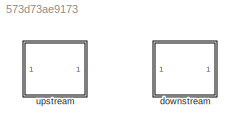
MODEL slx_573d73ae9173
KIND library
CONFIG AbsTol = 1e-6
CONFIG EnableMultiTasking = off
CONFIG FixedStep = auto
CONFIG MaxStep = auto
CONFIG MinStep = auto
CONFIG RelTol = 1e-3
CONFIG SampleTimeConstraint = Unconstrained
CONFIG SolverName = ode45
CONFIG StartTime = 0.0
CONFIG StopTime = 10.0
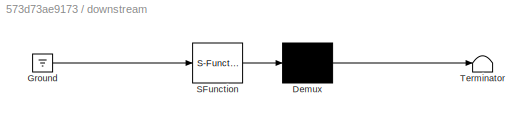
BLOCK [SubSystem] downstream
  ErrorFcn = Stateflow.Translate.translate
  PermitHierarchicalResolution = ExplicitOnly
  Ports = []
  RequestExecContextInheritance = off
  SFBlockType = Chart
  TreatAsAtomicUnit = on
BLOCK [Demux] downstream/ Demux 
  Outputs = 1
  Ports = [1, 1]
BLOCK [Ground] downstream/ Ground 
BLOCK [S-Function] downstream/ SFunction 
  EnableBusSupport = off
  FunctionName = sf_sfun
  PortCounts = [1 1]
  Ports = [1, 1]
  SFcnIsStateOwnerBlock = off
  SFunctionDeploymentMode = off
  Tag = Stateflow S-Function 1
BLOCK [Terminator] downstream/ Terminator 
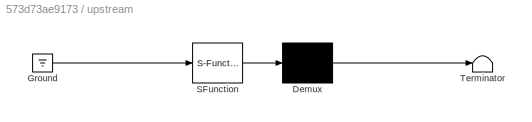
BLOCK [SubSystem] upstream
  BlockKeywords = __PRM__SERIALIZED__DATA__:Stateflow Chart,Stateflow Diagram
  ErrorFcn = Stateflow.Translate.translate
  PermitHierarchicalResolution = ExplicitOnly
  Ports = []
  RequestExecContextInheritance = off
  SFBlockType = Chart
  TreatAsAtomicUnit = on
BLOCK [Demux] upstream/ Demux 
  Outputs = 1
  Ports = [1, 1]
BLOCK [Ground] upstream/ Ground 
BLOCK [S-Function] upstream/ SFunction 
  EnableBusSupport = off
  FunctionName = sf_sfun
  PortCounts = [1 1]
  Ports = [1, 1]
  SFcnIsStateOwnerBlock = off
  SFunctionDeploymentMode = off
  Tag = Stateflow S-Function 3
BLOCK [Terminator] upstream/ Terminator 
CHART downstream states=3 transitions=6
  STATE_LABEL 'A'
  STATE_LABEL 'B'
  STATE_LABEL 'C'
CHART upstream states=3 transitions=6
  STATE_LABEL 'A'
  STATE_LABEL 'B'
  STATE_LABEL 'C'
CHART  states=0 transitions=0
CHART  states=0 transitions=0
